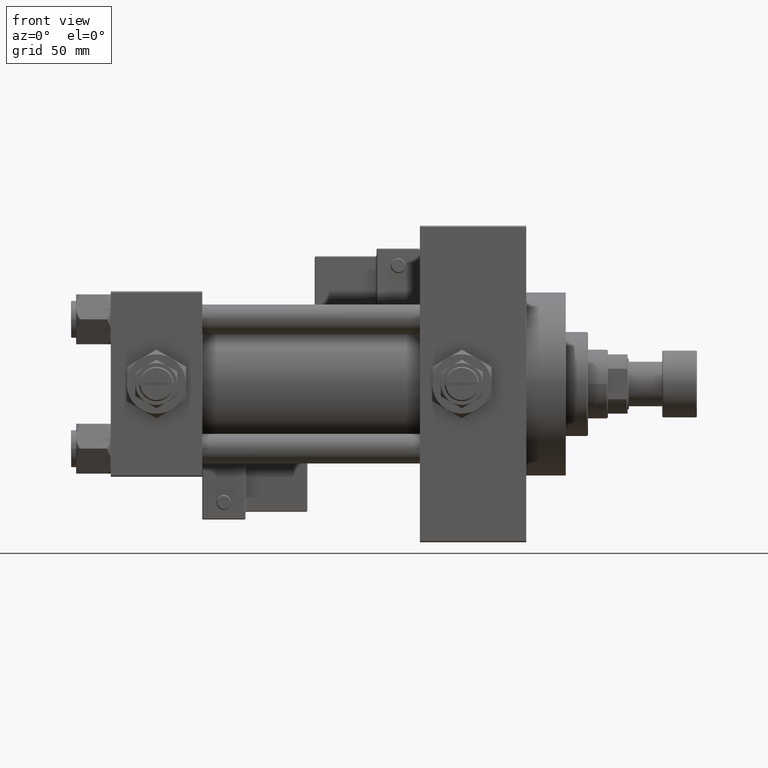
[diagram: clean part render]
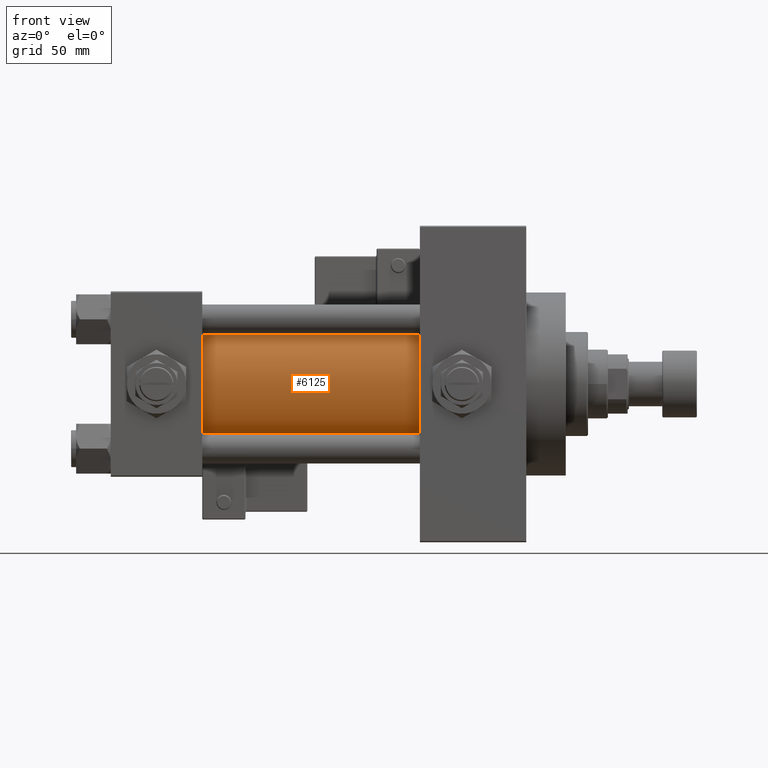
[diagram: same view with one face highlighted and labeled with its STEP entity id]
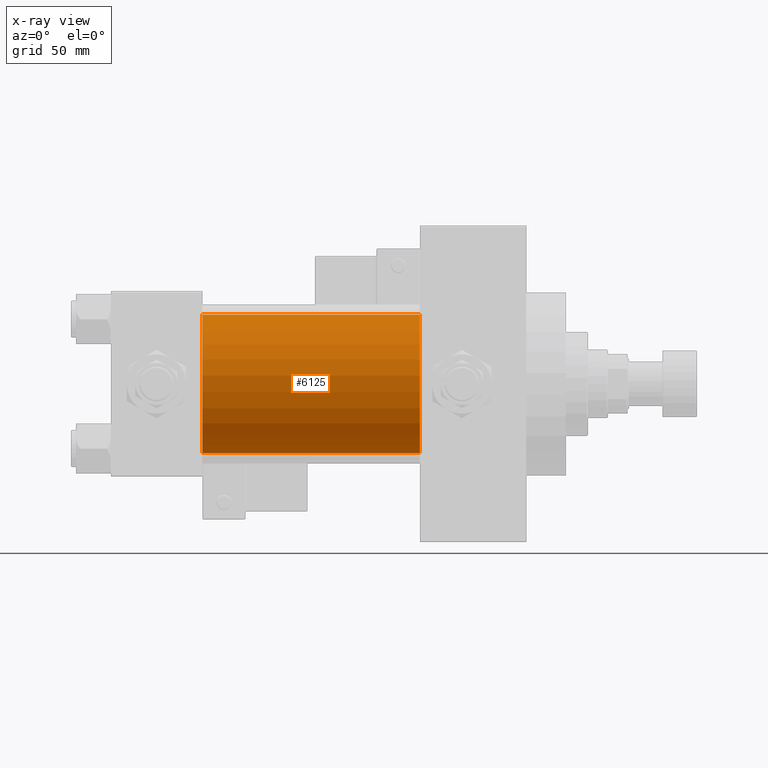
[diagram: x-ray of the same camera — body ghosted, the highlighted face saturated]
A machine part, front view. The second image highlights one B-rep face of the part: STEP entity #6125.
The next image is the same camera in x-ray: the body ghosted, the highlighted face saturated — about 0% of this face is hidden behind the body in this view.
In plain terms, the highlighted cylindrical surface (partial cylindrical patch) has radius 28 mm, axis along (-1, -0, -0).
Its self-contained STEP definition (entity closure, byte-faithful):
#1936 = EDGE_CURVE ( 'NONE', #27141, #39095, #37413, .T. ) ;
#1950 = VECTOR ( 'NONE', #9956, 1000.000000000000000 ) ;
#2640 = ORIENTED_EDGE ( 'NONE', *, *, #1936, .F. ) ;
#3371 = CARTESIAN_POINT ( 'NONE',  ( 125.0000000000000000, -2.602085213965210642E-15, 28.00000000000000000 ) ) ;
#4797 = EDGE_CURVE ( 'NONE', #27141, #45741, #7834, .T. ) ;
#5974 = FACE_OUTER_BOUND ( 'NONE', #41741, .T. ) ;
#6102 = DIRECTION ( 'NONE',  ( 1.000000000000000000, -0.000000000000000000, 0.000000000000000000 ) ) ;
#6125 = ADVANCED_FACE ( 'NONE', ( #5974 ), #34338, .T. ) ;
#6447 = CARTESIAN_POINT ( 'NONE',  ( 125.0000000000000000, -2.602085213965210642E-15, 0.000000000000000000 ) ) ;
#7834 = LINE ( 'NONE', #3371, #44216 ) ;
#8652 = DIRECTION ( 'NONE',  ( 0.000000000000000000, 0.000000000000000000, -1.000000000000000000 ) ) ;
#9918 = DIRECTION ( 'NONE',  ( 0.000000000000000000, 0.000000000000000000, 1.000000000000000000 ) ) ;
#9956 = DIRECTION ( 'NONE',  ( -1.000000000000000000, -0.000000000000000000, -0.000000000000000000 ) ) ;
#12339 = CARTESIAN_POINT ( 'NONE',  ( 125.0000000000000000, 8.269258236473784371E-16, -28.00000000000000000 ) ) ;
#13743 = DIRECTION ( 'NONE',  ( 0.000000000000000000, 0.000000000000000000, 1.000000000000000000 ) ) ;
#16608 = AXIS2_PLACEMENT_3D ( 'NONE', #26211, #50105, #9918 ) ;
#17837 = CARTESIAN_POINT ( 'NONE',  ( 125.0000000000000000, 8.269258236473784371E-16, -28.00000000000000000 ) ) ;
#18286 = DIRECTION ( 'NONE',  ( 1.000000000000000000, 0.000000000000000000, 0.000000000000000000 ) ) ;
#19485 = ORIENTED_EDGE ( 'NONE', *, *, #48946, .T. ) ;
#20451 = CARTESIAN_POINT ( 'NONE',  ( 37.00000000000000711, 8.269258236473784371E-16, -28.00000000000000000 ) ) ;
#22885 = AXIS2_PLACEMENT_3D ( 'NONE', #49705, #6102, #13743 ) ;
#26211 = CARTESIAN_POINT ( 'NONE',  ( 125.0000000000000000, -2.602085213965210642E-15, 0.000000000000000000 ) ) ;
#27141 = VERTEX_POINT ( 'NONE', #29409 ) ;
#29409 = CARTESIAN_POINT ( 'NONE',  ( 125.0000000000000000, -2.602085213965210642E-15, 28.00000000000000000 ) ) ;
#31547 = VERTEX_POINT ( 'NONE', #20451 ) ;
#33294 = CARTESIAN_POINT ( 'NONE',  ( 37.00000000000000711, -2.602085213965210642E-15, 28.00000000000000000 ) ) ;
#33859 = LINE ( 'NONE', #17837, #1950 ) ;
#34338 = CYLINDRICAL_SURFACE ( 'NONE', #16608, 28.00000000000000000 ) ;
#35060 = ORIENTED_EDGE ( 'NONE', *, *, #4797, .T. ) ;
#35408 = DIRECTION ( 'NONE',  ( -1.000000000000000000, -0.000000000000000000, -0.000000000000000000 ) ) ;
#37413 = CIRCLE ( 'NONE', #40742, 28.00000000000000000 ) ;
#38748 = ORIENTED_EDGE ( 'NONE', *, *, #51906, .F. ) ;
#39095 = VERTEX_POINT ( 'NONE', #12339 ) ;
#40742 = AXIS2_PLACEMENT_3D ( 'NONE', #6447, #18286, #8652 ) ;
#41741 = EDGE_LOOP ( 'NONE', ( #38748, #2640, #35060, #19485 ) ) ;
#44216 = VECTOR ( 'NONE', #35408, 1000.000000000000000 ) ;
#45741 = VERTEX_POINT ( 'NONE', #33294 ) ;
#46343 = CIRCLE ( 'NONE', #22885, 28.00000000000000000 ) ;
#48946 = EDGE_CURVE ( 'NONE', #45741, #31547, #46343, .T. ) ;
#49705 = CARTESIAN_POINT ( 'NONE',  ( 37.00000000000000711, -2.602085213965210642E-15, 0.000000000000000000 ) ) ;
#50105 = DIRECTION ( 'NONE',  ( -1.000000000000000000, -0.000000000000000000, -0.000000000000000000 ) ) ;
#51906 = EDGE_CURVE ( 'NONE', #39095, #31547, #33859, .T. ) ;